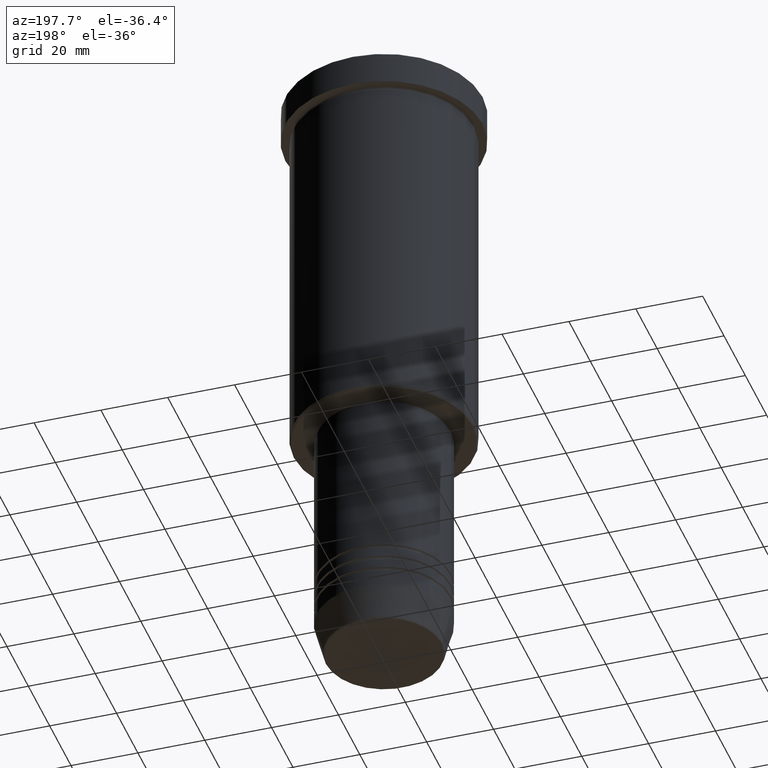
[diagram: clean part render]
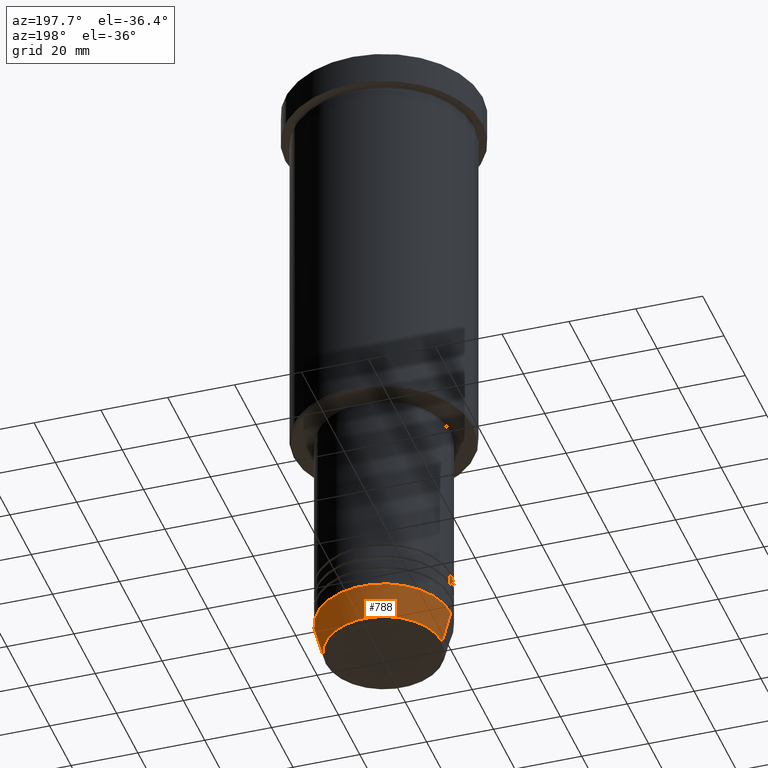
[diagram: same view with one face highlighted and labeled with its STEP entity id]
A machine part, auxiliary view. The second image highlights one B-rep face of the part: STEP entity #788.
In plain terms, the highlighted conical surface has half-angle 15 deg.
Its self-contained STEP definition (entity closure, byte-faithful):
#17 = CIRCLE ( 'NONE', #708, 17.41980749484382329 ) ;
#21 = EDGE_CURVE ( 'NONE', #497, #1021, #851, .T. ) ;
#29 = VERTEX_POINT ( 'NONE', #594 ) ;
#43 = CARTESIAN_POINT ( 'NONE',  ( -20.00000000000000000, 2.449293598294706513E-15, -181.0000000000000000 ) ) ;
#71 = VECTOR ( 'NONE', #1045, 1000.000000000000114 ) ;
#116 = EDGE_LOOP ( 'NONE', ( #361, #1159, #1001, #141 ) ) ;
#132 = CARTESIAN_POINT ( 'NONE',  ( 0.000000000000000000, 0.000000000000000000, -181.0000000000000000 ) ) ;
#141 = ORIENTED_EDGE ( 'NONE', *, *, #536, .F. ) ;
#150 = CARTESIAN_POINT ( 'NONE',  ( 0.000000000000000000, 0.000000000000000000, -181.0000000000000000 ) ) ;
#240 = DIRECTION ( 'NONE',  ( 1.000000000000000000, 0.000000000000000000, 0.000000000000000000 ) ) ;
#245 = CARTESIAN_POINT ( 'NONE',  ( 20.00000000000000000, 0.000000000000000000, -181.0000000000000000 ) ) ;
#295 = DIRECTION ( 'NONE',  ( 1.000000000000000000, 0.000000000000000000, 0.000000000000000000 ) ) ;
#317 = EDGE_CURVE ( 'NONE', #504, #1021, #679, .T. ) ;
#333 = DIRECTION ( 'NONE',  ( -0.000000000000000000, -0.000000000000000000, 1.000000000000000000 ) ) ;
#342 = DIRECTION ( 'NONE',  ( 0.2588190451025211836, 0.000000000000000000, 0.9659258262890680902 ) ) ;
#346 = CARTESIAN_POINT ( 'NONE',  ( 20.00000000000000000, 0.000000000000000000, -181.0000000000000000 ) ) ;
#361 = ORIENTED_EDGE ( 'NONE', *, *, #720, .T. ) ;
#411 = AXIS2_PLACEMENT_3D ( 'NONE', #150, #872, #240 ) ;
#497 = VERTEX_POINT ( 'NONE', #723 ) ;
#504 = VERTEX_POINT ( 'NONE', #245 ) ;
#536 = EDGE_CURVE ( 'NONE', #29, #504, #805, .T. ) ;
#559 = DIRECTION ( 'NONE',  ( -0.000000000000000000, -0.000000000000000000, 1.000000000000000000 ) ) ;
#594 = CARTESIAN_POINT ( 'NONE',  ( 17.41980749484382329, 0.000000000000000000, -190.6294095225512422 ) ) ;
#669 = AXIS2_PLACEMENT_3D ( 'NONE', #132, #333, #1171 ) ;
#679 = CIRCLE ( 'NONE', #411, 20.00000000000000000 ) ;
#708 = AXIS2_PLACEMENT_3D ( 'NONE', #1052, #559, #295 ) ;
#720 = EDGE_CURVE ( 'NONE', #29, #497, #17, .T. ) ;
#723 = CARTESIAN_POINT ( 'NONE',  ( -17.41980749484382329, 2.291302373663531915E-15, -190.6294095225512422 ) ) ;
#760 = CARTESIAN_POINT ( 'NONE',  ( -20.00000000000000000, 2.449293598294706513E-15, -181.0000000000000000 ) ) ;
#779 = FACE_OUTER_BOUND ( 'NONE', #116, .T. ) ;
#788 = ADVANCED_FACE ( 'NONE', ( #779 ), #978, .T. ) ;
#805 = LINE ( 'NONE', #346, #823 ) ;
#823 = VECTOR ( 'NONE', #342, 1000.000000000000114 ) ;
#851 = LINE ( 'NONE', #43, #71 ) ;
#872 = DIRECTION ( 'NONE',  ( -0.000000000000000000, -0.000000000000000000, 1.000000000000000000 ) ) ;
#978 = CONICAL_SURFACE ( 'NONE', #669, 20.00000000000000000, 0.2617993877991499074 ) ;
#1001 = ORIENTED_EDGE ( 'NONE', *, *, #317, .F. ) ;
#1021 = VERTEX_POINT ( 'NONE', #760 ) ;
#1045 = DIRECTION ( 'NONE',  ( -0.2588190451025211836, 3.169619151431770488E-17, 0.9659258262890680902 ) ) ;
#1052 = CARTESIAN_POINT ( 'NONE',  ( 0.000000000000000000, 0.000000000000000000, -190.6294095225512422 ) ) ;
#1159 = ORIENTED_EDGE ( 'NONE', *, *, #21, .T. ) ;
#1171 = DIRECTION ( 'NONE',  ( 1.000000000000000000, 0.000000000000000000, 0.000000000000000000 ) ) ;